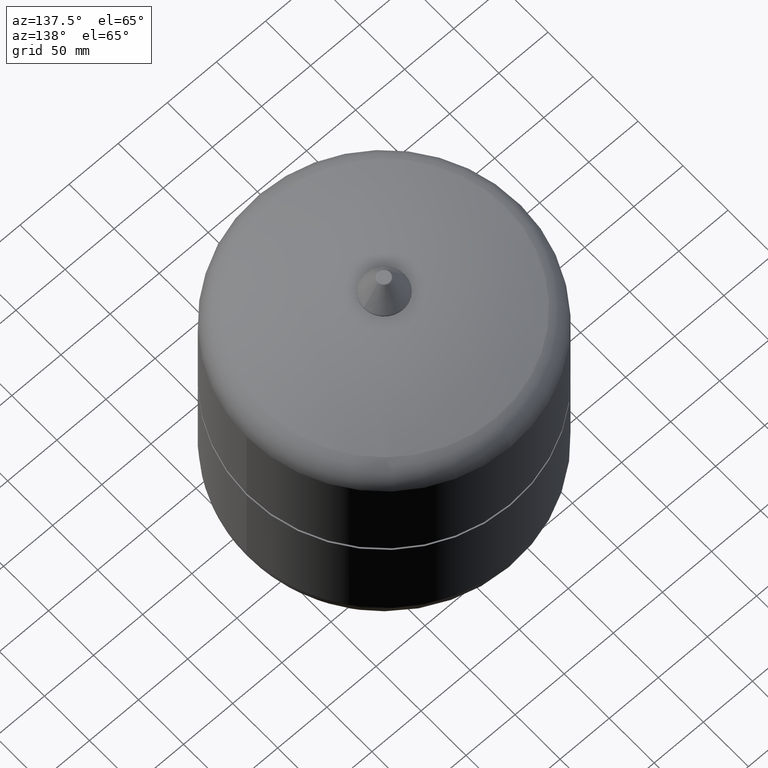
[diagram: clean part render]
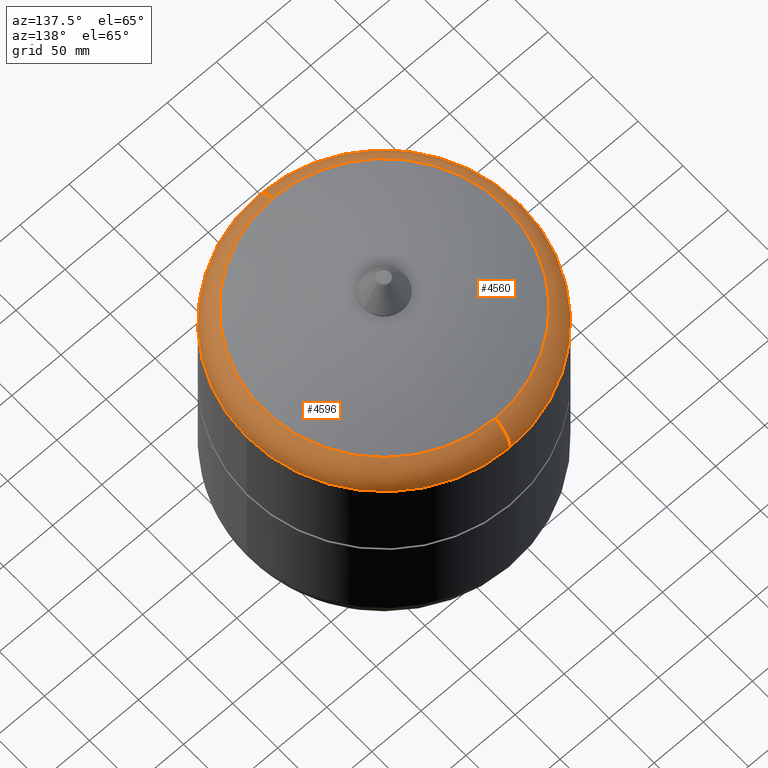
[diagram: same view with one multi-face feature highlighted, each face labeled with its STEP entity id]
A machine part, auxiliary view. The highlighted faces form ONE feature: a constant-radius fillet chain: 2 tangent blend faces with common blend radius 29 mm. The faces share edges in the B-rep.
Their STEP definitions:
[1] entity #4560 (Torus):
#4465=CARTESIAN_POINT('',(-139.999999999999970,-7.243841E-017,299.236601813234470));
#4466=VERTEX_POINT('',#4465);
#4490=CARTESIAN_POINT('',(-1.000425E-014,-140.0,299.236601813234360));
#4491=VERTEX_POINT('',#4490);
#4499=CARTESIAN_POINT('',(-4.569998E-017,-7.243841E-017,299.236601813234470));
#4500=DIRECTION('',(0.0,0.0,-1.0));
#4501=DIRECTION('',(-1.0,0.0,0.0));
#4502=AXIS2_PLACEMENT_3D('',#4499,#4500,#4501);
#4503=CIRCLE('',#4502,140.0);
#4504=EDGE_CURVE('',#4491,#4466,#4503,.T.);
#4509=CARTESIAN_POINT('',(7.140239E-015,-7.243841E-017,299.236601813234470));
#4510=DIRECTION('',(1.931514E-016,3.061617E-016,-1.0));
#4511=DIRECTION('',(0.0,1.0,0.0));
#4512=AXIS2_PLACEMENT_3D('',#4509,#4510,#4511);
#4513=TOROIDAL_SURFACE('',#4512,111.000000000000010,29.000000000000004);
#4514=CARTESIAN_POINT('',(7.140239E-015,140.0,299.236601813234590));
#4515=VERTEX_POINT('',#4514);
#4516=CARTESIAN_POINT('',(2.111510E-015,123.773809523809520,325.271766307614660));
#4517=VERTEX_POINT('',#4516);
#4518=CARTESIAN_POINT('',(7.140239E-015,111.000000000000010,299.236601813234530));
#4519=DIRECTION('',(1.0,0.0,0.0));
#4520=DIRECTION('',(0.0,1.0,0.0));
#4521=AXIS2_PLACEMENT_3D('',#4518,#4519,#4520);
#4522=CIRCLE('',#4521,29.000000000000004);
#4523=EDGE_CURVE('',#4515,#4517,#4522,.T.);
#4524=ORIENTED_EDGE('',*,*,#4523,.F.);
#4525=CARTESIAN_POINT('',(-4.569998E-017,-7.243841E-017,299.236601813234470));
#4526=DIRECTION('',(0.0,0.0,-1.0));
#4527=DIRECTION('',(-1.0,0.0,0.0));
#4528=AXIS2_PLACEMENT_3D('',#4525,#4526,#4527);
#4529=CIRCLE('',#4528,140.0);
#4530=EDGE_CURVE('',#4466,#4515,#4529,.T.);
#4531=ORIENTED_EDGE('',*,*,#4530,.F.);
#4532=ORIENTED_EDGE('',*,*,#4504,.F.);
#4533=CARTESIAN_POINT('',(-1.304591E-014,-123.773809523809550,325.271766307614540));
#4534=VERTEX_POINT('',#4533);
#4535=CARTESIAN_POINT('',(-6.452891E-015,-111.000000000000010,299.236601813234420));
#4536=DIRECTION('',(-1.0,0.0,0.0));
#4537=DIRECTION('',(0.0,-1.0,0.0));
#4538=AXIS2_PLACEMENT_3D('',#4535,#4536,#4537);
#4539=CIRCLE('',#4538,29.000000000000004);
#4540=EDGE_CURVE('',#4491,#4534,#4539,.T.);
#4541=ORIENTED_EDGE('',*,*,#4540,.T.);
#4542=CARTESIAN_POINT('',(-123.773809523809550,-8.043409E-015,325.271766307614600));
#4543=VERTEX_POINT('',#4542);
#4544=CARTESIAN_POINT('',(-5.074429E-015,-8.043409E-015,325.271766307614600));
#4545=DIRECTION('',(0.0,0.0,-1.0));
#4546=DIRECTION('',(-1.0,0.0,0.0));
#4547=AXIS2_PLACEMENT_3D('',#4544,#4545,#4546);
#4548=CIRCLE('',#4547,123.773809523809530);
#4549=EDGE_CURVE('',#4534,#4543,#4548,.T.);
#4550=ORIENTED_EDGE('',*,*,#4549,.T.);
#4551=CARTESIAN_POINT('',(-5.074429E-015,-8.043409E-015,325.271766307614600));
#4552=DIRECTION('',(0.0,0.0,-1.0));
#4553=DIRECTION('',(-1.0,0.0,0.0));
#4554=AXIS2_PLACEMENT_3D('',#4551,#4552,#4553);
#4555=CIRCLE('',#4554,123.773809523809530);
#4556=EDGE_CURVE('',#4543,#4517,#4555,.T.);
#4557=ORIENTED_EDGE('',*,*,#4556,.T.);
#4558=EDGE_LOOP('',(#4524,#4531,#4532,#4541,#4550,#4557));
#4559=FACE_OUTER_BOUND('',#4558,.T.);
#4560=ADVANCED_FACE('',(#4559),#4513,.T.);
[2] entity #4596 (Torus):
#4482=CARTESIAN_POINT('',(140.0,-1.721693E-014,299.236601813234470));
#4483=VERTEX_POINT('',#4482);
#4490=CARTESIAN_POINT('',(-1.000425E-014,-140.0,299.236601813234360));
#4491=VERTEX_POINT('',#4490);
#4492=CARTESIAN_POINT('',(-4.569998E-017,-7.243841E-017,299.236601813234470));
#4493=DIRECTION('',(0.0,0.0,-1.0));
#4494=DIRECTION('',(-1.0,0.0,0.0));
#4495=AXIS2_PLACEMENT_3D('',#4492,#4493,#4494);
#4496=CIRCLE('',#4495,140.0);
#4497=EDGE_CURVE('',#4483,#4491,#4496,.T.);
#4514=CARTESIAN_POINT('',(7.140239E-015,140.0,299.236601813234590));
#4515=VERTEX_POINT('',#4514);
#4516=CARTESIAN_POINT('',(2.111510E-015,123.773809523809520,325.271766307614660));
#4517=VERTEX_POINT('',#4516);
#4518=CARTESIAN_POINT('',(7.140239E-015,111.000000000000010,299.236601813234530));
#4519=DIRECTION('',(1.0,0.0,0.0));
#4520=DIRECTION('',(0.0,1.0,0.0));
#4521=AXIS2_PLACEMENT_3D('',#4518,#4519,#4520);
#4522=CIRCLE('',#4521,29.000000000000004);
#4523=EDGE_CURVE('',#4515,#4517,#4522,.T.);
#4533=CARTESIAN_POINT('',(-1.304591E-014,-123.773809523809550,325.271766307614540));
#4534=VERTEX_POINT('',#4533);
#4535=CARTESIAN_POINT('',(-6.452891E-015,-111.000000000000010,299.236601813234420));
#4536=DIRECTION('',(-1.0,0.0,0.0));
#4537=DIRECTION('',(0.0,-1.0,0.0));
#4538=AXIS2_PLACEMENT_3D('',#4535,#4536,#4537);
#4539=CIRCLE('',#4538,29.000000000000004);
#4540=EDGE_CURVE('',#4491,#4534,#4539,.T.);
#4568=CARTESIAN_POINT('',(-5.074429E-015,-8.043409E-015,325.271766307614600));
#4569=DIRECTION('',(0.0,0.0,-1.0));
#4570=DIRECTION('',(-1.0,0.0,0.0));
#4571=AXIS2_PLACEMENT_3D('',#4568,#4569,#4570);
#4572=CIRCLE('',#4571,123.773809523809530);
#4573=EDGE_CURVE('',#4517,#4534,#4572,.T.);
#4578=CARTESIAN_POINT('',(7.140239E-015,-7.243841E-017,299.236601813234470));
#4579=DIRECTION('',(1.931514E-016,3.061617E-016,-1.0));
#4580=DIRECTION('',(0.0,1.0,0.0));
#4581=AXIS2_PLACEMENT_3D('',#4578,#4579,#4580);
#4582=TOROIDAL_SURFACE('',#4581,111.000000000000010,29.000000000000004);
#4583=ORIENTED_EDGE('',*,*,#4523,.T.);
#4584=ORIENTED_EDGE('',*,*,#4573,.T.);
#4585=ORIENTED_EDGE('',*,*,#4540,.F.);
#4586=ORIENTED_EDGE('',*,*,#4497,.F.);
#4587=CARTESIAN_POINT('',(-4.569998E-017,-7.243841E-017,299.236601813234470));
#4588=DIRECTION('',(0.0,0.0,-1.0));
#4589=DIRECTION('',(-1.0,0.0,0.0));
#4590=AXIS2_PLACEMENT_3D('',#4587,#4588,#4589);
#4591=CIRCLE('',#4590,140.0);
#4592=EDGE_CURVE('',#4515,#4483,#4591,.T.);
#4593=ORIENTED_EDGE('',*,*,#4592,.F.);
#4594=EDGE_LOOP('',(#4583,#4584,#4585,#4586,#4593));
#4595=FACE_OUTER_BOUND('',#4594,.T.);
#4596=ADVANCED_FACE('',(#4595),#4582,.T.);